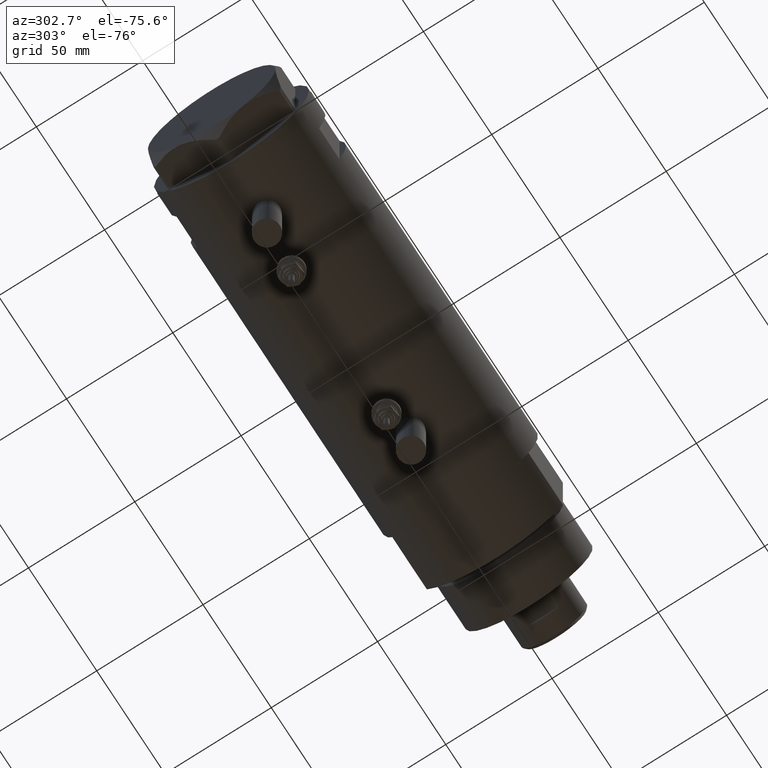
[diagram: clean part render]
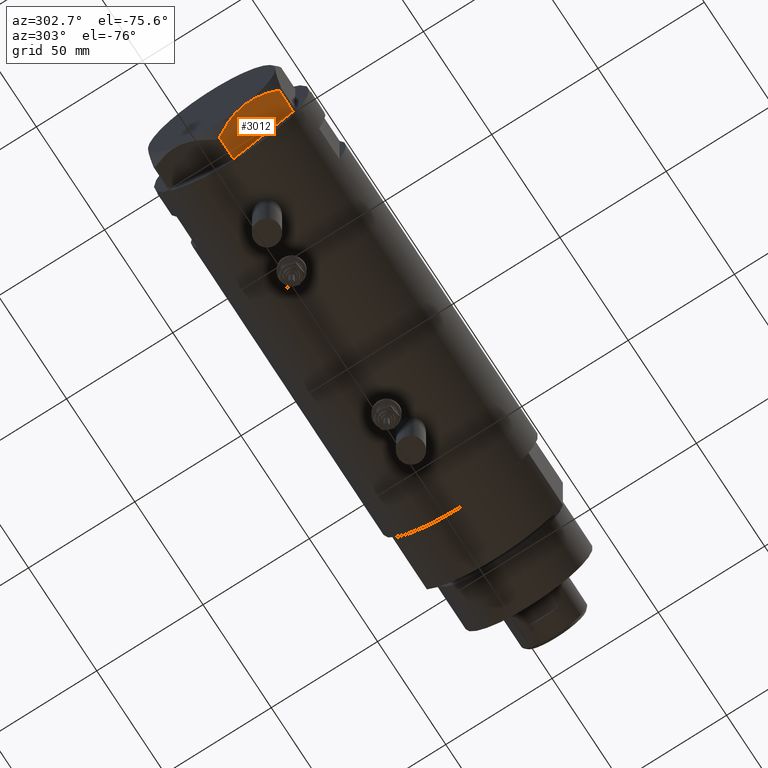
[diagram: same view with one face highlighted and labeled with its STEP entity id]
A machine part, auxiliary view. The second image highlights one B-rep face of the part: STEP entity #3012.
In plain terms, the highlighted planar face has unit normal (0, 0.5, 0.866).
Its self-contained STEP definition (entity closure, byte-faithful):
#41 = ORIENTED_EDGE ( 'NONE', *, *, #3626, .F. ) ;
#76 = CARTESIAN_POINT ( 'NONE',  ( -14.99999999999999645, 25.98076211353316367, 14.50000000000000000 ) ) ;
#289 = EDGE_CURVE ( 'NONE', #1592, #2364, #1174, .T. ) ;
#361 = CARTESIAN_POINT ( 'NONE',  ( -23.36084816446653534, 21.15362417512481841, 12.99122625442232248 ) ) ;
#367 = LINE ( 'NONE', #2734, #535 ) ;
#482 = VERTEX_POINT ( 'NONE', #651 ) ;
#535 = VECTOR ( 'NONE', #2255, 1000.000000000000000 ) ;
#557 = FACE_OUTER_BOUND ( 'NONE', #5898, .T. ) ;
#651 = CARTESIAN_POINT ( 'NONE',  ( -29.03005154776141339, 17.88050807568878042, 0.000000000000000000 ) ) ;
#957 = ORIENTED_EDGE ( 'NONE', *, *, #5912, .T. ) ;
#1074 = LINE ( 'NONE', #2924, #1350 ) ;
#1174 = B_SPLINE_CURVE_WITH_KNOTS ( 'NONE', 3,
 ( #3767, #4166, #2780, #3251, #3225, #5603, #3315, #1965, #5078, #2545 ),
 .UNSPECIFIED., .F., .F.,
 ( 4, 2, 2, 2, 4 ),
 ( 0.001230196178133369841, 0.009592363676680740539, 0.01377344742595442567, 0.01586398930059126564, 0.01795453117522810907 ),
 .UNSPECIFIED. ) ;
#1275 = CARTESIAN_POINT ( 'NONE',  ( -26.80734602959449475, 19.16378770493171046, 11.56973717813737856 ) ) ;
#1336 = CARTESIAN_POINT ( 'NONE',  ( -14.99999999999999645, 25.98076211353316367, 14.50000000000000000 ) ) ;
#1350 = VECTOR ( 'NONE', #4306, 1000.000000000000114 ) ;
#1592 = VERTEX_POINT ( 'NONE', #1736 ) ;
#1732 = CARTESIAN_POINT ( 'NONE',  ( -27.92668431253403583, 18.51753744596231854, 11.01056656432685266 ) ) ;
#1736 = CARTESIAN_POINT ( 'NONE',  ( -0.9699484522384067553, 34.08101615137763218, 10.40518423703594841 ) ) ;
#1893 = DIRECTION ( 'NONE',  ( 0.4999999999999998335, -0.8660254037844388186, 0.000000000000000000 ) ) ;
#1942 = B_SPLINE_CURVE_WITH_KNOTS ( 'NONE', 3,
 ( #1336, #4937, #3114, #2192, #361, #5845, #3169, #1275, #1732, #2219 ),
 .UNSPECIFIED., .F., .F.,
 ( 4, 2, 2, 2, 4 ),
 ( 0.01795453117522810907, 0.02625795893839791631, 0.02833381587919037159, 0.03040967281998281993, 0.03456138670156771314 ),
 .UNSPECIFIED. ) ;
#1946 = VERTEX_POINT ( 'NONE', #3606 ) ;
#1965 = CARTESIAN_POINT ( 'NONE',  ( -13.77383861939865461, 26.68868671669327242, 14.47500996539161555 ) ) ;
#2052 = DIRECTION ( 'NONE',  ( 0.000000000000000000, 0.000000000000000000, -1.000000000000000000 ) ) ;
#2192 = CARTESIAN_POINT ( 'NONE',  ( -22.77266513462828712, 21.49321180573470258, 13.19311392138146388 ) ) ;
#2219 = CARTESIAN_POINT ( 'NONE',  ( -29.03005154776140984, 17.88050807568878398, 10.40518423703604256 ) ) ;
#2242 = EDGE_CURVE ( 'NONE', #482, #1946, #367, .T. ) ;
#2255 = DIRECTION ( 'NONE',  ( 0.000000000000000000, 0.000000000000000000, 1.000000000000000000 ) ) ;
#2364 = VERTEX_POINT ( 'NONE', #76 ) ;
#2467 = PLANE ( 'NONE',  #2953 ) ;
#2545 = CARTESIAN_POINT ( 'NONE',  ( -14.99999999999999645, 25.98076211353316367, 14.50000000000000000 ) ) ;
#2734 = CARTESIAN_POINT ( 'NONE',  ( -29.03005154776140628, 17.88050807568878753, 14.50000000000000000 ) ) ;
#2780 = CARTESIAN_POINT ( 'NONE',  ( -5.430403497542002356, 31.50577123026336679, 12.63511531451932157 ) ) ;
#2924 = CARTESIAN_POINT ( 'NONE',  ( 0.000000000000000000, 34.64101615137754209, 0.000000000000000000 ) ) ;
#2953 = AXIS2_PLACEMENT_3D ( 'NONE', #4293, #1893, #5137 ) ;
#3012 = ADVANCED_FACE ( 'NONE', ( #557 ), #2467, .F. ) ;
#3114 = CARTESIAN_POINT ( 'NONE',  ( -19.82219921729533141, 23.19666409734169932, 14.10092492974134792 ) ) ;
#3169 = CARTESIAN_POINT ( 'NONE',  ( -25.09761465865699392, 20.15090157218442357, 12.31959434659020225 ) ) ;
#3225 = CARTESIAN_POINT ( 'NONE',  ( -10.11505054612624832, 28.80108899570488035, 14.00566141361760764 ) ) ;
#3251 = CARTESIAN_POINT ( 'NONE',  ( -8.929227268745748347, 29.48572438411184393, 13.71922620632299328 ) ) ;
#3315 = CARTESIAN_POINT ( 'NONE',  ( -12.54037849421162676, 27.40082525200466890, 14.37423503257921809 ) ) ;
#3335 = ORIENTED_EDGE ( 'NONE', *, *, #5505, .T. ) ;
#3558 = VECTOR ( 'NONE', #2052, 1000.000000000000000 ) ;
#3606 = CARTESIAN_POINT ( 'NONE',  ( -29.03005154776140984, 17.88050807568878398, 10.40518423703604256 ) ) ;
#3626 = EDGE_CURVE ( 'NONE', #2364, #1946, #1942, .T. ) ;
#3766 = CARTESIAN_POINT ( 'NONE',  ( -0.9699484522385681817, 34.08101615137753981, 14.50000000000000000 ) ) ;
#3767 = CARTESIAN_POINT ( 'NONE',  ( -0.9699484522384067553, 34.08101615137763218, 10.40518423703594841 ) ) ;
#3826 = LINE ( 'NONE', #3766, #3558 ) ;
#4099 = ORIENTED_EDGE ( 'NONE', *, *, #289, .F. ) ;
#4166 = CARTESIAN_POINT ( 'NONE',  ( -3.175372020745250712, 32.80771426042305450, 11.61522964162834093 ) ) ;
#4175 = VERTEX_POINT ( 'NONE', #4953 ) ;
#4293 = CARTESIAN_POINT ( 'NONE',  ( 0.000000000000000000, 34.64101615137754209, 14.50000000000000000 ) ) ;
#4306 = DIRECTION ( 'NONE',  ( -0.8660254037844387076, -0.4999999999999998335, 0.000000000000000000 ) ) ;
#4707 = ORIENTED_EDGE ( 'NONE', *, *, #2242, .T. ) ;
#4937 = CARTESIAN_POINT ( 'NONE',  ( -17.43031680809874473, 24.57761805016127710, 14.50000000000000533 ) ) ;
#4953 = CARTESIAN_POINT ( 'NONE',  ( -0.9699484522385684038, 34.08101615137753981, 0.000000000000000000 ) ) ;
#5078 = CARTESIAN_POINT ( 'NONE',  ( -14.38812268849982878, 26.33402964403881441, 14.50000000000000355 ) ) ;
#5137 = DIRECTION ( 'NONE',  ( 0.8660254037844387076, 0.4999999999999997780, 0.000000000000000000 ) ) ;
#5505 = EDGE_CURVE ( 'NONE', #4175, #482, #1074, .T. ) ;
#5603 = CARTESIAN_POINT ( 'NONE',  ( -11.92931894229901246, 27.75362064879230317, 14.29910535634587099 ) ) ;
#5845 = CARTESIAN_POINT ( 'NONE',  ( -24.52256617298829866, 20.48290597018235104, 12.55468001512206833 ) ) ;
#5898 = EDGE_LOOP ( 'NONE', ( #3335, #4707, #41, #4099, #957 ) ) ;
#5912 = EDGE_CURVE ( 'NONE', #1592, #4175, #3826, .T. ) ;